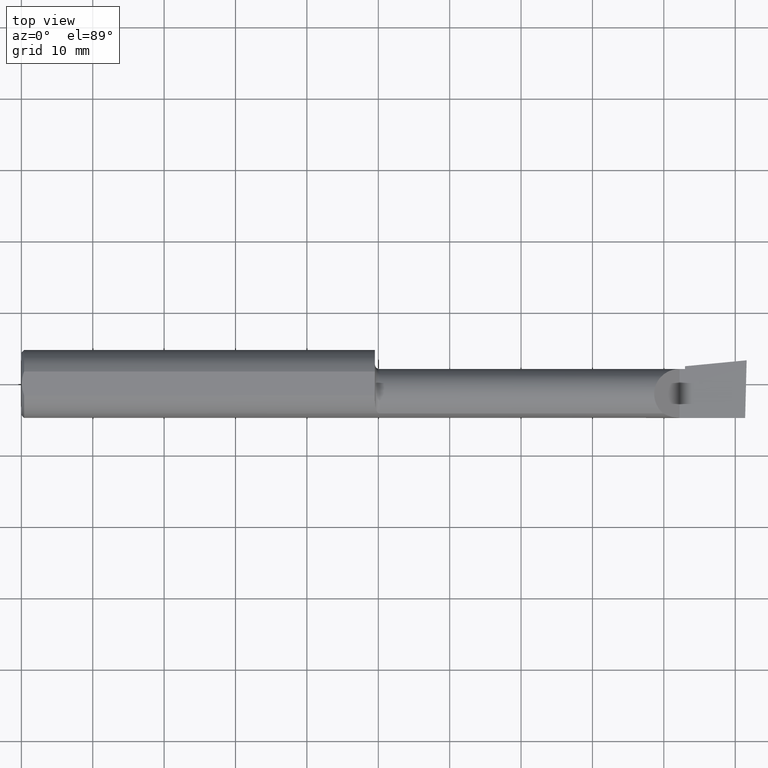
[diagram: clean part render]
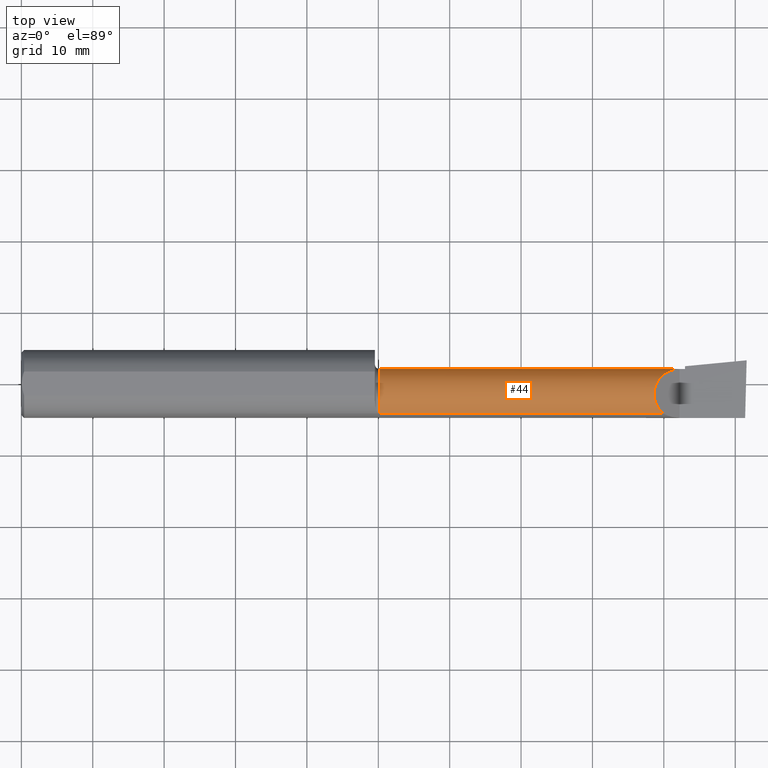
[diagram: same view with one face highlighted and labeled with its STEP entity id]
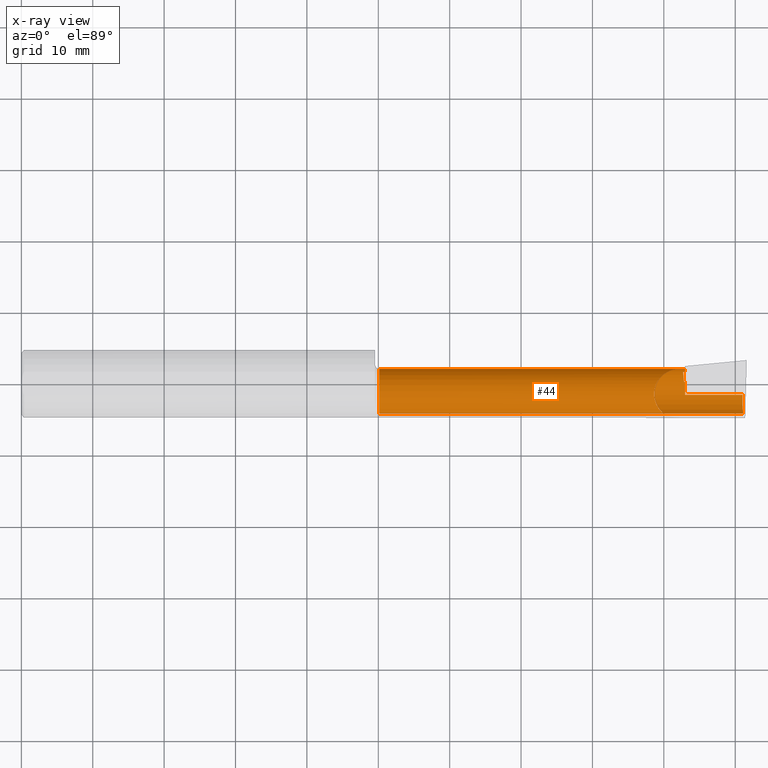
[diagram: x-ray of the same camera — body ghosted, the highlighted face saturated]
A machine part, top view. The second image highlights one B-rep face of the part: STEP entity #44.
The next image is the same camera in x-ray: the body ghosted, the highlighted face saturated — about 0% of this face is hidden behind the body in this view.
In plain terms, the highlighted cylindrical surface (edge-blend (fillet) strip) has radius 3.5573 mm, axis along (-1, -0, -0).
Its self-contained STEP definition (entity closure, byte-faithful):
#7 = ORIENTED_EDGE ( 'NONE', *, *, #544, .F. ) ;
#14 = LINE ( 'NONE', #566, #332 ) ;
#17 = ORIENTED_EDGE ( 'NONE', *, *, #295, .F. ) ;
#20 = CARTESIAN_POINT ( 'NONE',  ( 3.654666039249973686, 0.01321247140458286194, -0.1209457786867198376 ) ) ;
#21 = VERTEX_POINT ( 'NONE', #235 ) ;
#32 = CARTESIAN_POINT ( 'NONE',  ( 3.656639924654160101, 0.06539171466162853330, -0.06735725908305577325 ) ) ;
#34 = DIRECTION ( 'NONE',  ( -1.000000000000000000, -4.268512490100411279E-18, -0.000000000000000000 ) ) ;
#35 = CARTESIAN_POINT ( 'NONE',  ( 3.981080296960509024, -0.1635956445993029806, -0.09130436773856190347 ) ) ;
#43 = CARTESIAN_POINT ( 'NONE',  ( 3.629999999999999893, 0.08264999999999990410, -1.383850883036508279E-16 ) ) ;
#44 = ADVANCED_FACE ( 'NONE', ( #567 ), #232, .T. ) ;
#48 = CARTESIAN_POINT ( 'NONE',  ( 3.654666039249973686, 0.01321247140458286194, -0.1209457786867198376 ) ) ;
#49 = VERTEX_POINT ( 'NONE', #414 ) ;
#59 =( BOUNDED_CURVE ( )  B_SPLINE_CURVE ( 3, ( #35, #391, #243, #591 ),
 .UNSPECIFIED., .F., .F. ) 
 B_SPLINE_CURVE_WITH_KNOTS ( ( 4, 4 ),
 ( 5.632580117768156036, 6.493234751459283416 ),
 .UNSPECIFIED. ) 
 CURVE ( )  GEOMETRIC_REPRESENTATION_ITEM ( )  RATIONAL_B_SPLINE_CURVE ( ( 1.000000000000000000, 0.9392195014330944058, 0.9392195014330944058, 1.000000000000000000 ) ) 
 REPRESENTATION_ITEM ( '' )  );
#60 = CARTESIAN_POINT ( 'NONE',  ( 3.650743536083990382, 0.05394922433140207640, -0.08888335082963770561 ) ) ;
#61 = ORIENTED_EDGE ( 'NONE', *, *, #465, .T. ) ;
#75 = CARTESIAN_POINT ( 'NONE',  ( 3.658254417281640247, 0.01401537333401175513, -0.1204743278970655529 ) ) ;
#80 = CARTESIAN_POINT ( 'NONE',  ( 3.421229036482944075, -0.06260079402492399470, 0.2087709635170538480 ) ) ;
#87 = CARTESIAN_POINT ( 'NONE',  ( 2.817500000000000338, -0.1635956445993029806, -0.09130436773856190347 ) ) ;
#93 = CARTESIAN_POINT ( 'NONE',  ( 4.000000000000000000, -0.05739999999999999963, -0.1400500000000000633 ) ) ;
#116 = EDGE_LOOP ( 'NONE', ( #503, #162, #7, #61, #558, #472, #507, #314, #308, #573, #444, #17 ) ) ;
#120 = DIRECTION ( 'NONE',  ( -1.000000000000000000, -4.268512490100411279E-18, -0.000000000000000000 ) ) ;
#127 = VERTEX_POINT ( 'NONE', #43 ) ;
#128 = CARTESIAN_POINT ( 'NONE',  ( 3.659999999999999698, 0.01441505128072236540, -0.1202356058309986681 ) ) ;
#129 = EDGE_CURVE ( 'NONE', #230, #181, #411, .T. ) ;
#130 = DIRECTION ( 'NONE',  ( -1.000000000000000000, -4.268512490100411279E-18, -0.000000000000000000 ) ) ;
#137 =( BOUNDED_CURVE ( )  B_SPLINE_CURVE ( 3, ( #514, #80, #282, #175 ),
 .UNSPECIFIED., .F., .T. ) 
 B_SPLINE_CURVE_WITH_KNOTS ( ( 4, 4 ),
 ( 5.422530673488460629, 7.853981633974483678 ),
 .UNSPECIFIED. ) 
 CURVE ( )  GEOMETRIC_REPRESENTATION_ITEM ( )  RATIONAL_B_SPLINE_CURVE ( ( 1.000000000000000000, 0.5651045289226865886, 0.5651045289226865886, 1.000000000000000000 ) ) 
 REPRESENTATION_ITEM ( '' )  );
#143 = DIRECTION ( 'NONE',  ( 1.000000000000000000, 4.268512490100411279E-18, 0.000000000000000000 ) ) ;
#145 = DIRECTION ( 'NONE',  ( -1.000000000000000000, -4.268512490100411279E-18, -0.000000000000000000 ) ) ;
#154 = VECTOR ( 'NONE', #143, 39.37007874015748143 ) ;
#159 = DIRECTION ( 'NONE',  ( -1.000000000000000000, 5.691349986800549142E-18, -0.000000000000000000 ) ) ;
#161 = CARTESIAN_POINT ( 'NONE',  ( 3.649559965233994507, 0.06624107758111237587, -0.06577907292278784013 ) ) ;
#162 = ORIENTED_EDGE ( 'NONE', *, *, #588, .T. ) ;
#174 = VERTEX_POINT ( 'NONE', #431 ) ;
#175 = CARTESIAN_POINT ( 'NONE',  ( 3.629999999999999893, 0.08264999999999990410, -1.383850883036508279E-16 ) ) ;
#176 = AXIS2_PLACEMENT_3D ( 'NONE', #563, #120, #323 ) ;
#181 = VERTEX_POINT ( 'NONE', #294 ) ;
#198 = CARTESIAN_POINT ( 'NONE',  ( 3.659999999999999698, 0.08265000000000023717, 1.790477306702066946E-16 ) ) ;
#201 = CARTESIAN_POINT ( 'NONE',  ( 3.652489847161463743, 0.03581309036639282462, -0.1077507289917615518 ) ) ;
#209 = EDGE_CURVE ( 'NONE', #218, #466, #59, .T. ) ;
#216 = CIRCLE ( 'NONE', #572, 0.1400499999999998413 ) ;
#218 = VERTEX_POINT ( 'NONE', #302 ) ;
#223 = DIRECTION ( 'NONE',  ( 4.268512490100412049E-18, -1.000000000000000000, 0.000000000000000000 ) ) ;
#230 = VERTEX_POINT ( 'NONE', #198 ) ;
#231 = CARTESIAN_POINT ( 'NONE',  ( 3.538695632261437130, -0.1635956445993027863, 0.09130436773856213939 ) ) ;
#232 = CYLINDRICAL_SURFACE ( 'NONE', #539, 0.1400500000000000078 ) ;
#233 = VERTEX_POINT ( 'NONE', #350 ) ;
#235 = CARTESIAN_POINT ( 'NONE',  ( 3.649559965233994507, 0.06624107758111237587, -0.06577907292278784013 ) ) ;
#240 = CARTESIAN_POINT ( 'NONE',  ( 3.659999999999999698, 0.06495571228477983738, -0.06814016562413256761 ) ) ;
#243 = CARTESIAN_POINT ( 'NONE',  ( 3.976787929832031221, -0.09887019258091177265, -0.1400500000000001188 ) ) ;
#245 = CARTESIAN_POINT ( 'NONE',  ( 3.653159806206771165, 0.06582018291673084887, -0.06657020401570125367 ) ) ;
#246 = VECTOR ( 'NONE', #159, 39.37007874015748143 ) ;
#271 = CARTESIAN_POINT ( 'NONE',  ( 0.000000000000000000, -0.05740000000000001351, 0.000000000000000000 ) ) ;
#282 = CARTESIAN_POINT ( 'NONE',  ( 3.475085956200449022, 0.08265000000000018165, 0.1549140437995492336 ) ) ;
#286 = CARTESIAN_POINT ( 'NONE',  ( 1.975000000000000089, -0.05740000000000000657, 0.000000000000000000 ) ) ;
#291 = CARTESIAN_POINT ( 'NONE',  ( 3.649559965233994507, 0.06624107758111237587, -0.06577907292278784013 ) ) ;
#294 = CARTESIAN_POINT ( 'NONE',  ( 3.659999999999999698, 0.06495571228477983738, -0.06814016562413256761 ) ) ;
#295 = EDGE_CURVE ( 'NONE', #466, #442, #527, .T. ) ;
#302 = CARTESIAN_POINT ( 'NONE',  ( 3.981080296960509024, -0.1635956445993029806, -0.09130436773856190347 ) ) ;
#308 = ORIENTED_EDGE ( 'NONE', *, *, #616, .T. ) ;
#314 = ORIENTED_EDGE ( 'NONE', *, *, #511, .F. ) ;
#317 =( BOUNDED_CURVE ( )  B_SPLINE_CURVE ( 3, ( #161, #60, #201, #48 ),
 .UNSPECIFIED., .F., .F. ) 
 B_SPLINE_CURVE_WITH_KNOTS ( ( 4, 4 ),
 ( 0.4889314207010920788, 1.042347087928815030 ),
 .UNSPECIFIED. ) 
 CURVE ( )  GEOMETRIC_REPRESENTATION_ITEM ( )  RATIONAL_B_SPLINE_CURVE ( ( 1.000000000000000000, 0.9746400248777660202, 0.9746400248777660202, 1.000000000000000000 ) ) 
 REPRESENTATION_ITEM ( '' )  );
#323 = DIRECTION ( 'NONE',  ( 0.000000000000000000, -1.000000000000000000, 0.000000000000000000 ) ) ;
#324 = CIRCLE ( 'NONE', #176, 0.1400500000000002299 ) ;
#328 = CARTESIAN_POINT ( 'NONE',  ( 3.656476415630202759, 0.01361451005324046913, -0.1207110541441178408 ) ) ;
#332 = VECTOR ( 'NONE', #622, 39.37007874015748143 ) ;
#337 = LINE ( 'NONE', #87, #495 ) ;
#350 = CARTESIAN_POINT ( 'NONE',  ( 1.975000000000000089, -0.1635956445993032582, -0.09130436773856132060 ) ) ;
#369 = VERTEX_POINT ( 'NONE', #449 ) ;
#391 = CARTESIAN_POINT ( 'NONE',  ( 3.977925907309857845, -0.1365595166907234981, -0.1227499502647109025 ) ) ;
#407 = EDGE_CURVE ( 'NONE', #49, #442, #324, .T. ) ;
#411 = CIRCLE ( 'NONE', #422, 0.1400500000000002299 ) ;
#414 = CARTESIAN_POINT ( 'NONE',  ( 3.659999999999999698, 0.01441505128072236540, -0.1202356058309986681 ) ) ;
#416 = CARTESIAN_POINT ( 'NONE',  ( 3.659999999999999698, -0.05739999999999999963, -0.1400500000000000633 ) ) ;
#418 = VERTEX_POINT ( 'NONE', #231 ) ;
#422 = AXIS2_PLACEMENT_3D ( 'NONE', #474, #145, #488 ) ;
#431 = CARTESIAN_POINT ( 'NONE',  ( 3.654666039249973686, 0.01321247140458286194, -0.1209457786867198376 ) ) ;
#432 =( BOUNDED_CURVE ( )  B_SPLINE_CURVE ( 3, ( #291, #245, #32, #240 ),
 .UNSPECIFIED., .F., .F. ) 
 B_SPLINE_CURVE_WITH_KNOTS ( ( 4, 4 ),
 ( 2.860273215522869172, 2.879468752205584181 ),
 .UNSPECIFIED. ) 
 CURVE ( )  GEOMETRIC_REPRESENTATION_ITEM ( )  RATIONAL_B_SPLINE_CURVE ( ( 1.000000000000000000, 0.9999692945166647196, 0.9999692945166647196, 1.000000000000000000 ) ) 
 REPRESENTATION_ITEM ( '' )  );
#442 = VERTEX_POINT ( 'NONE', #416 ) ;
#444 = ORIENTED_EDGE ( 'NONE', *, *, #407, .T. ) ;
#446 = EDGE_CURVE ( 'NONE', #49, #174, #620, .T. ) ;
#449 = CARTESIAN_POINT ( 'NONE',  ( 1.975000000000000089, -0.1635956445993030084, 0.09130436773856159816 ) ) ;
#462 = CARTESIAN_POINT ( 'NONE',  ( 3.977873865042411250, -0.05739999999999999963, -0.1400500000000000633 ) ) ;
#465 = EDGE_CURVE ( 'NONE', #369, #418, #14, .T. ) ;
#466 = VERTEX_POINT ( 'NONE', #462 ) ;
#472 = ORIENTED_EDGE ( 'NONE', *, *, #554, .T. ) ;
#474 = CARTESIAN_POINT ( 'NONE',  ( 3.659999999999999698, -0.05739999999999999963, 0.000000000000000000 ) ) ;
#479 = EDGE_CURVE ( 'NONE', #418, #127, #137, .T. ) ;
#488 = DIRECTION ( 'NONE',  ( 0.000000000000000000, -1.000000000000000000, 0.000000000000000000 ) ) ;
#495 = VECTOR ( 'NONE', #523, 39.37007874015748143 ) ;
#503 = ORIENTED_EDGE ( 'NONE', *, *, #209, .F. ) ;
#507 = ORIENTED_EDGE ( 'NONE', *, *, #129, .T. ) ;
#511 = EDGE_CURVE ( 'NONE', #21, #181, #432, .T. ) ;
#514 = CARTESIAN_POINT ( 'NONE',  ( 3.538695632261437130, -0.1635956445993027863, 0.09130436773856213939 ) ) ;
#523 = DIRECTION ( 'NONE',  ( -1.000000000000000000, -4.268512490100411279E-18, -0.000000000000000000 ) ) ;
#527 = LINE ( 'NONE', #93, #246 ) ;
#533 = DIRECTION ( 'NONE',  ( 0.000000000000000000, -1.000000000000000000, 0.000000000000000000 ) ) ;
#539 = AXIS2_PLACEMENT_3D ( 'NONE', #271, #130, #223 ) ;
#544 = EDGE_CURVE ( 'NONE', #369, #233, #216, .T. ) ;
#554 = EDGE_CURVE ( 'NONE', #127, #230, #636, .T. ) ;
#558 = ORIENTED_EDGE ( 'NONE', *, *, #479, .T. ) ;
#563 = CARTESIAN_POINT ( 'NONE',  ( 3.659999999999999698, -0.05739999999999999963, 0.000000000000000000 ) ) ;
#566 = CARTESIAN_POINT ( 'NONE',  ( 2.817500000000000338, -0.1635956445993029806, 0.09130436773856190347 ) ) ;
#567 = FACE_OUTER_BOUND ( 'NONE', #116, .T. ) ;
#572 = AXIS2_PLACEMENT_3D ( 'NONE', #286, #34, #533 ) ;
#573 = ORIENTED_EDGE ( 'NONE', *, *, #446, .F. ) ;
#579 = CARTESIAN_POINT ( 'NONE',  ( -5.978051742385470281E-19, 0.08265000000000000124, 1.790477306702064235E-16 ) ) ;
#588 = EDGE_CURVE ( 'NONE', #218, #233, #337, .T. ) ;
#591 = CARTESIAN_POINT ( 'NONE',  ( 3.977873865042411250, -0.05739999999999999963, -0.1400500000000000633 ) ) ;
#616 = EDGE_CURVE ( 'NONE', #21, #174, #317, .T. ) ;
#620 =( BOUNDED_CURVE ( )  B_SPLINE_CURVE ( 3, ( #128, #75, #328, #20 ),
 .UNSPECIFIED., .F., .F. ) 
 B_SPLINE_CURVE_WITH_KNOTS ( ( 4, 4 ),
 ( 3.403716554974004715, 3.413688882750591347 ),
 .UNSPECIFIED. ) 
 CURVE ( )  GEOMETRIC_REPRESENTATION_ITEM ( )  RATIONAL_B_SPLINE_CURVE ( ( 1.000000000000000000, 0.9999917127403961103, 0.9999917127403961103, 1.000000000000000000 ) ) 
 REPRESENTATION_ITEM ( '' )  );
#622 = DIRECTION ( 'NONE',  ( 1.000000000000000000, 4.268512490100411279E-18, 0.000000000000000000 ) ) ;
#636 = LINE ( 'NONE', #579, #154 ) ;